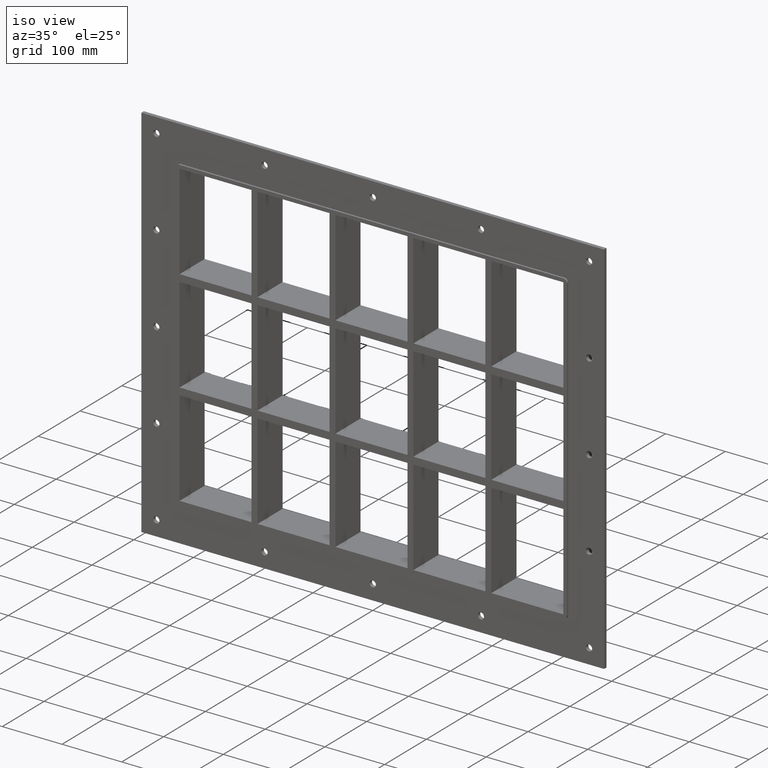
[diagram: clean part render]
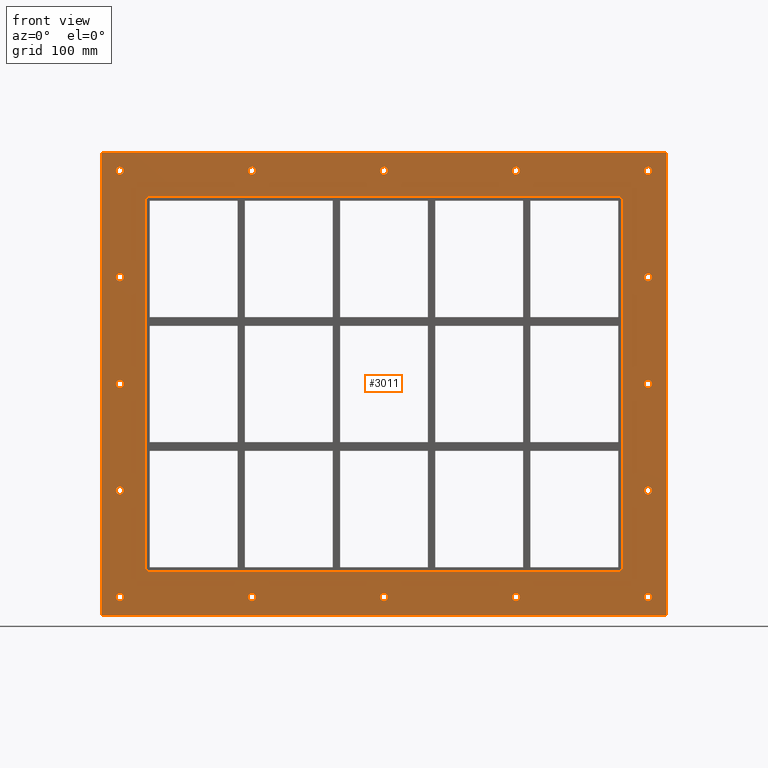
[diagram: tour spotlight — one face highlighted and labeled with its STEP entity id]
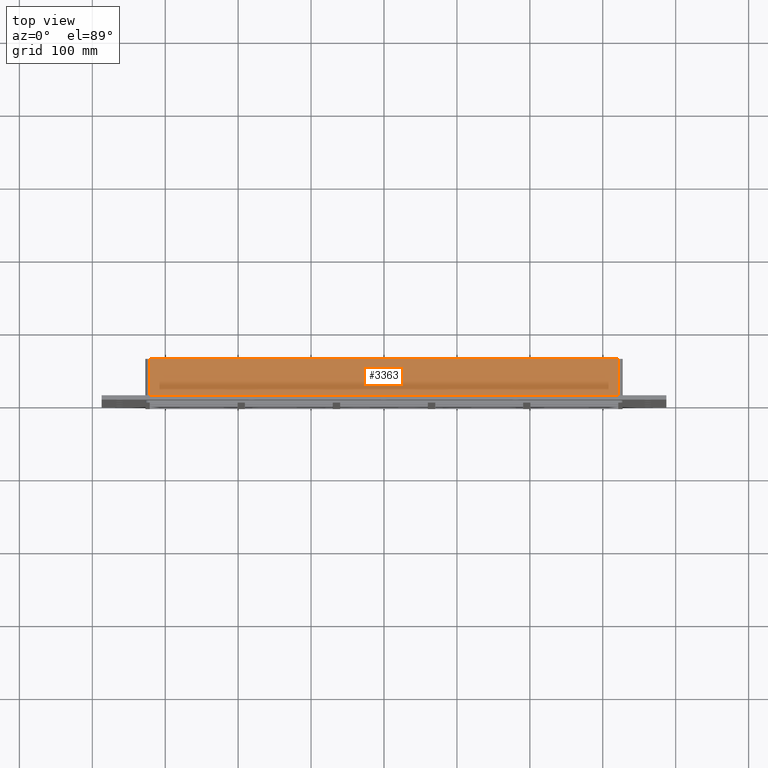
[diagram: tour spotlight — one face highlighted and labeled with its STEP entity id]
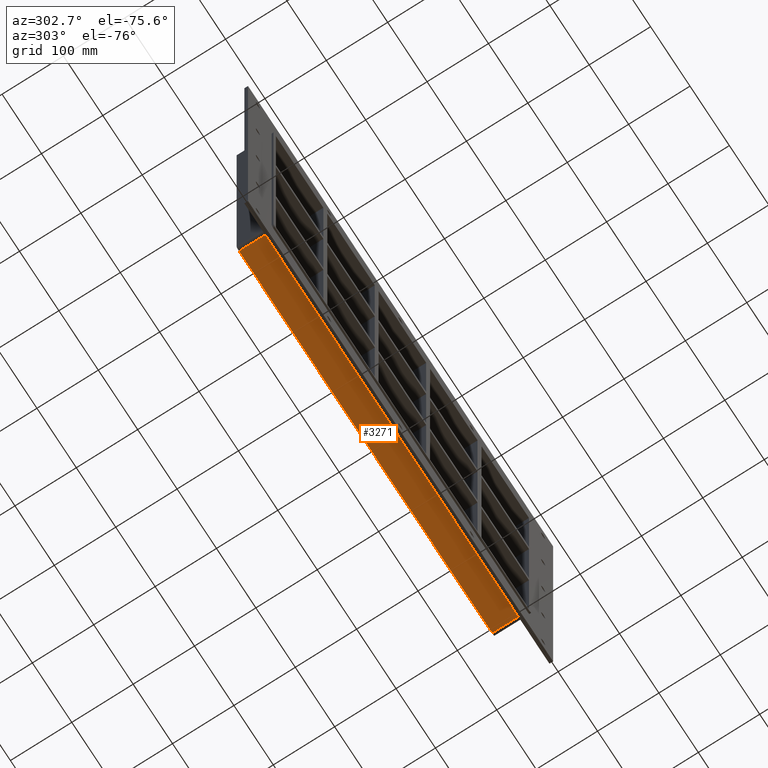
[diagram: tour spotlight — one face highlighted and labeled with its STEP entity id]
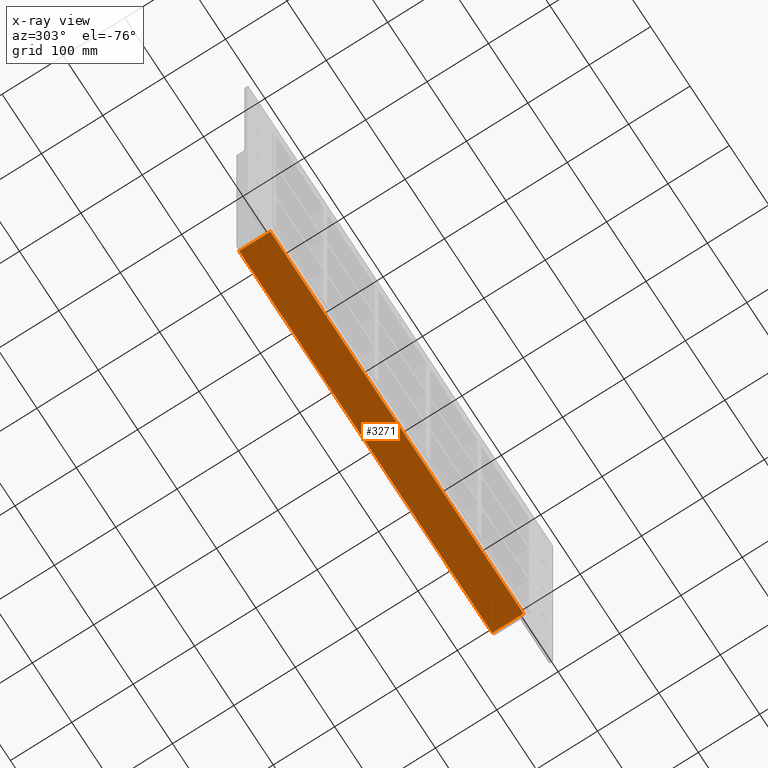
[diagram: x-ray of the same camera — body ghosted, this tour face saturated]
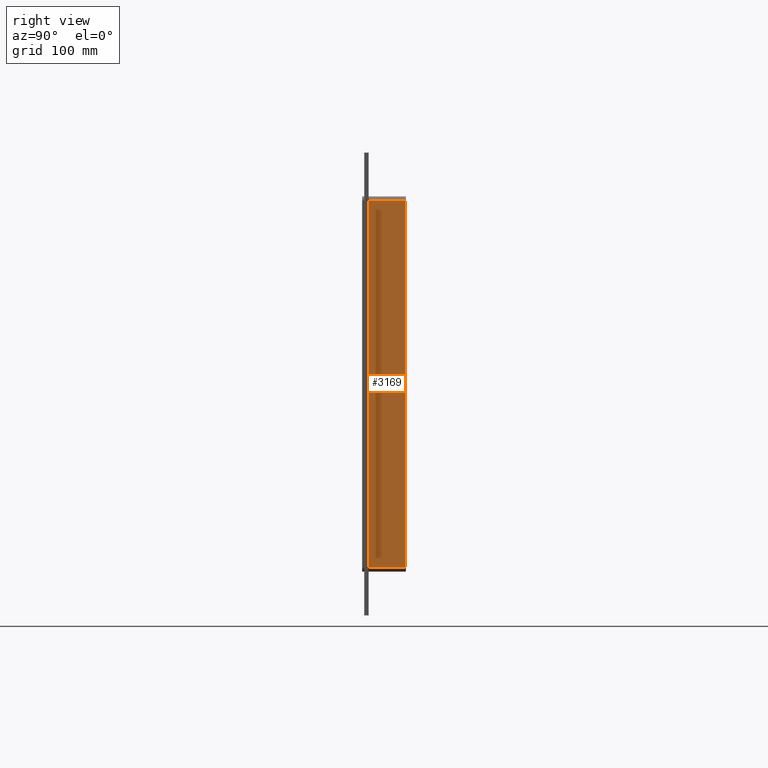
[diagram: tour spotlight — one face highlighted and labeled with its STEP entity id]
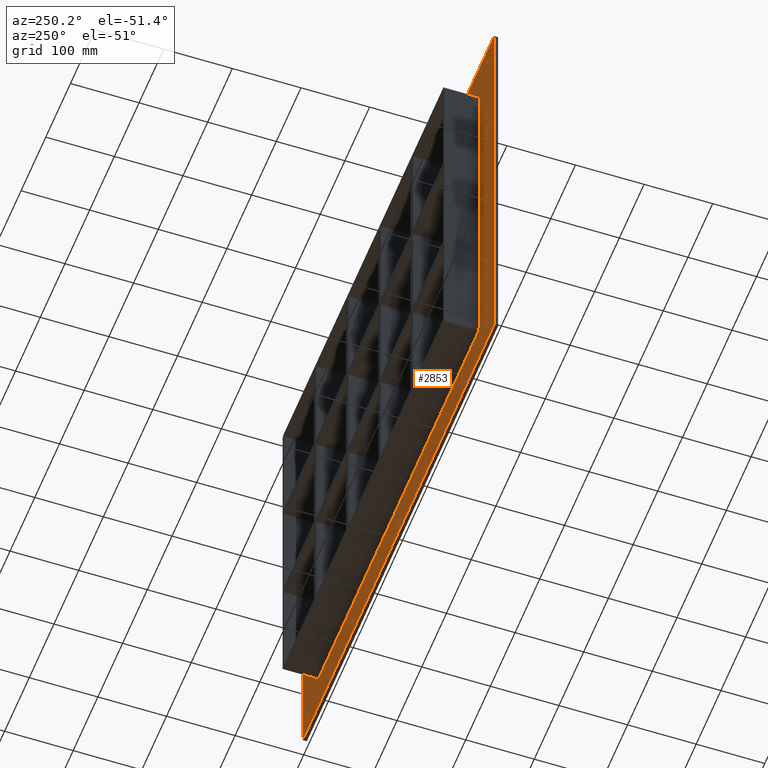
[diagram: tour spotlight — one face highlighted and labeled with its STEP entity id]
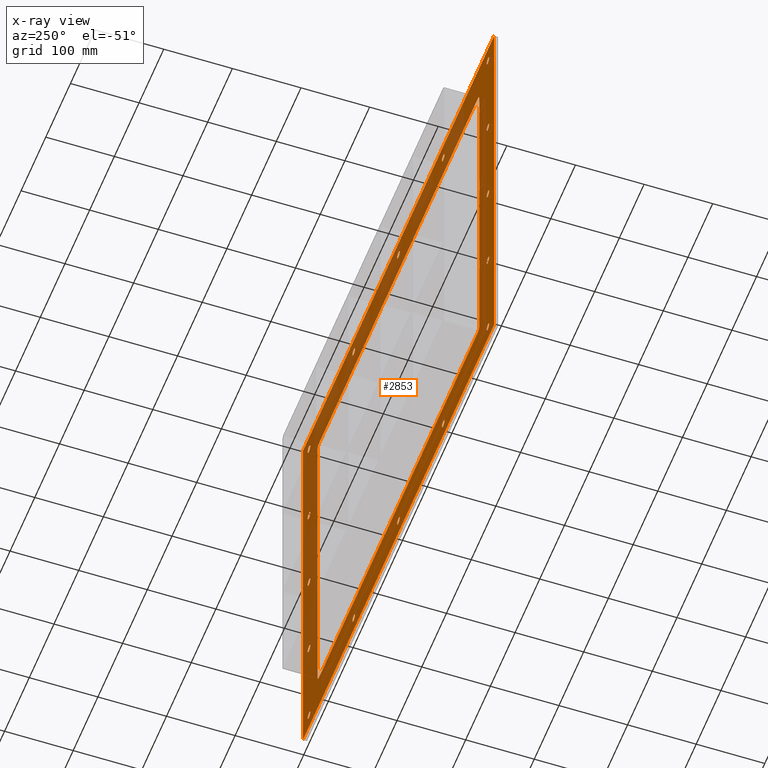
[diagram: x-ray of the same camera — body ghosted, this tour face saturated]
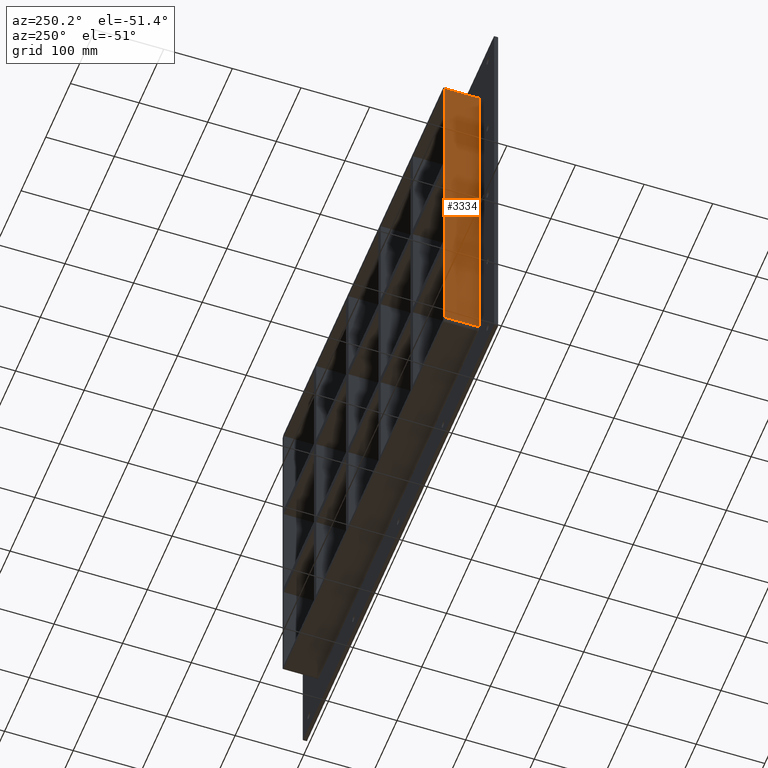
[diagram: tour spotlight — one face highlighted and labeled with its STEP entity id]
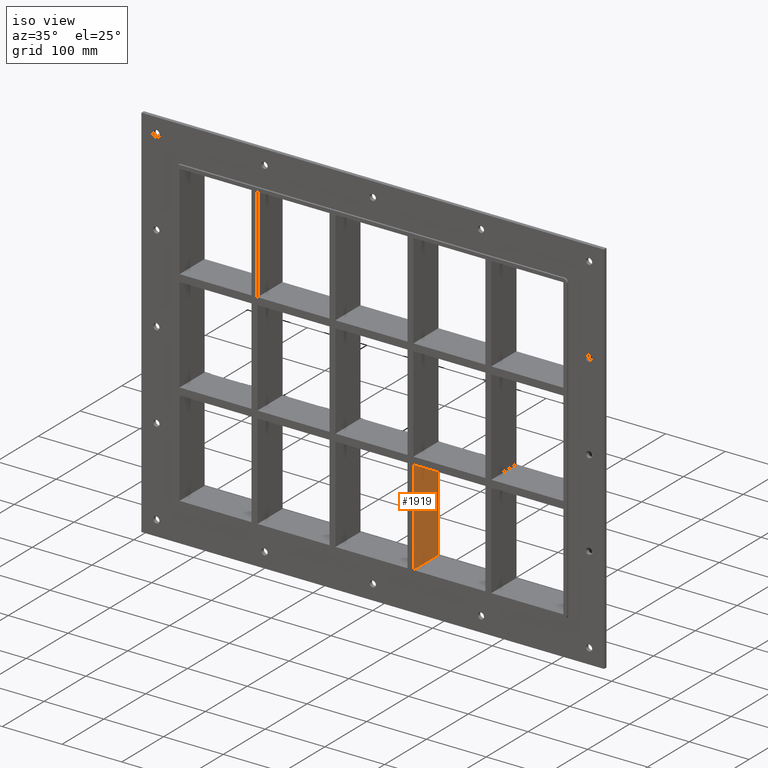
[diagram: tour spotlight — one face highlighted and labeled with its STEP entity id]
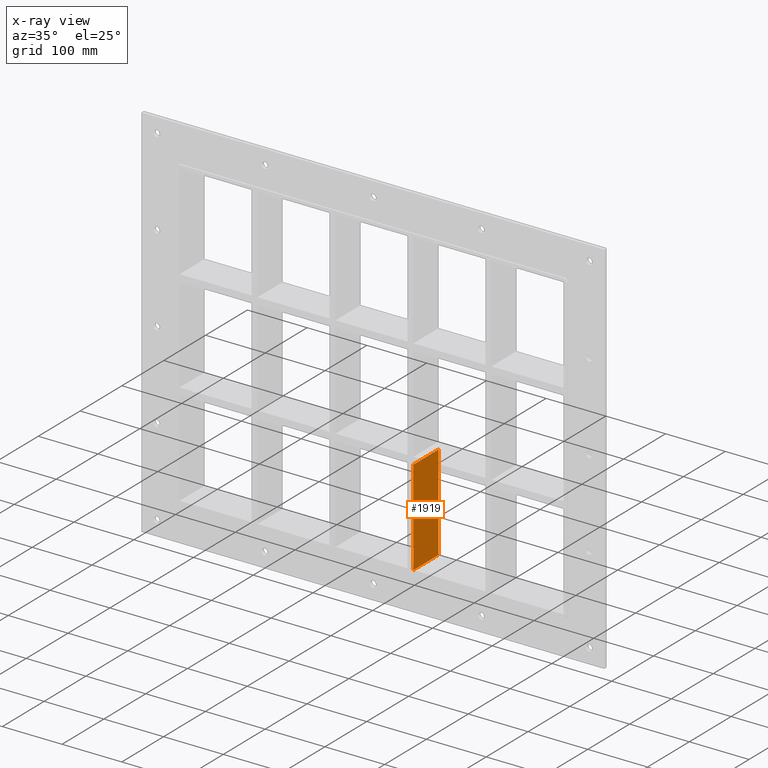
[diagram: x-ray of the same camera — body ghosted, this tour face saturated]
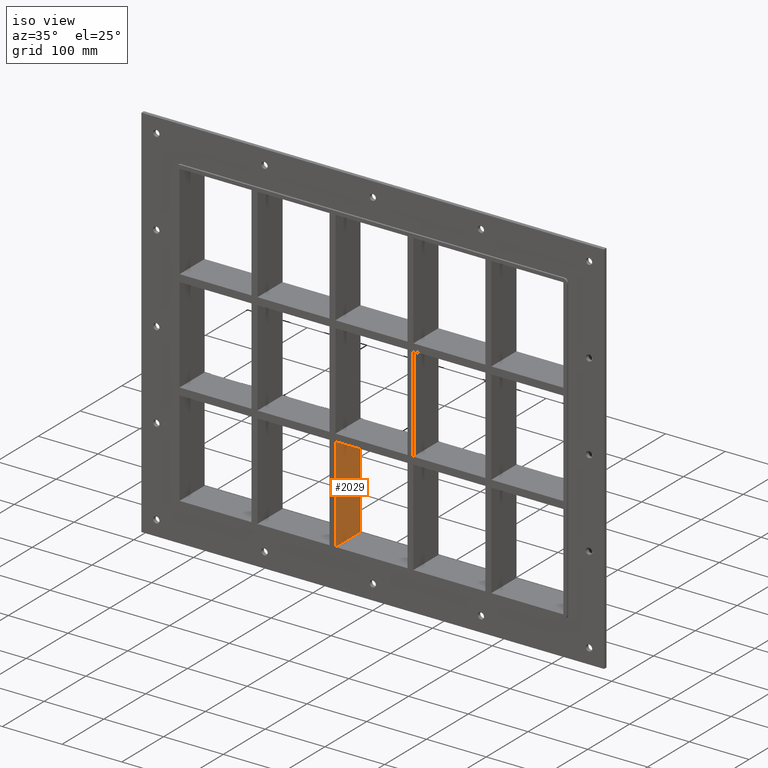
[diagram: tour spotlight — one face highlighted and labeled with its STEP entity id]
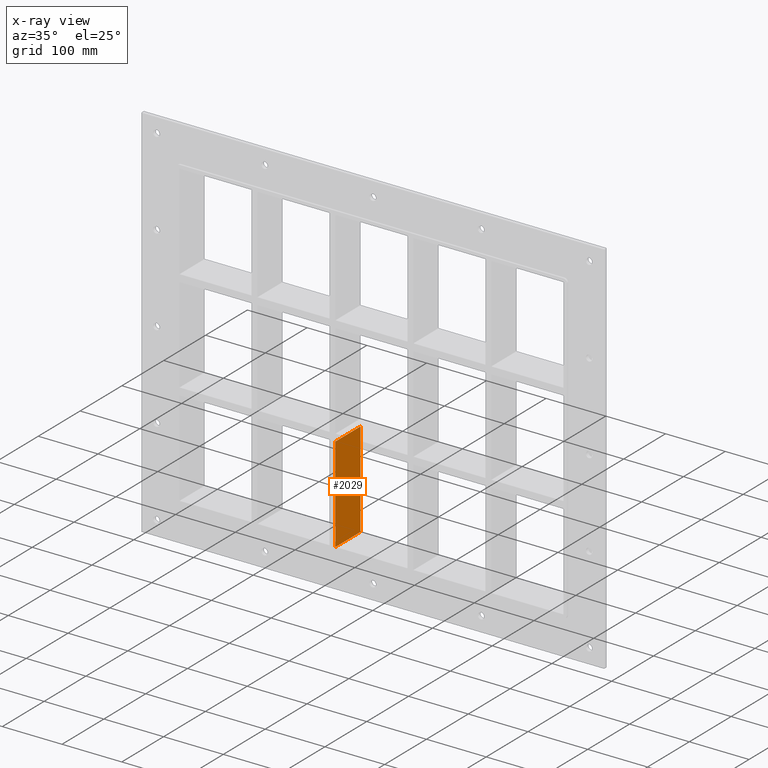
[diagram: x-ray of the same camera — body ghosted, this tour face saturated]
A machine part: a face-by-face anatomy tour. The part has 100 B-rep faces; the first image is the clean iso view, then the 8 largest visible faces are spotlighted one at a time (largest first), each with its STEP entity span.

Face 1 — front view, entity #3011. In plain terms, the highlighted planar face has unit normal (0, 1, 0).
Definition (entity closure, byte-faithful):
#84=CARTESIAN_POINT('',(-357.00000000000011,0.0,-292.24999999999989));
#85=VERTEX_POINT('',#84);
#86=CARTESIAN_POINT('',(-362.25000000000011,0.0,-292.24999999999989));
#87=DIRECTION('',(0.0,1.0,0.0));
#88=DIRECTION('',(1.0,0.0,0.0));
#89=AXIS2_PLACEMENT_3D('',#86,#87,#88);
#90=CIRCLE('',#89,5.25);
#91=EDGE_CURVE('',#85,#85,#90,.T.);
#112=CARTESIAN_POINT('',(367.39999999999986,0.0,-146.04999999999993));
#113=VERTEX_POINT('',#112);
#114=CARTESIAN_POINT('',(362.14999999999986,0.0,-146.04999999999993));
#115=DIRECTION('',(0.0,1.0,0.0));
#116=DIRECTION('',(1.0,0.0,0.0));
#117=AXIS2_PLACEMENT_3D('',#114,#115,#116);
#118=CIRCLE('',#117,5.25);
#119=EDGE_CURVE('',#113,#113,#118,.T.);
#140=CARTESIAN_POINT('',(-357.00000000000011,0.0,-146.04999999999993));
#141=VERTEX_POINT('',#140);
#142=CARTESIAN_POINT('',(-362.25000000000011,0.0,-146.04999999999993));
#143=DIRECTION('',(0.0,1.0,0.0));
#144=DIRECTION('',(1.0,0.0,0.0));
#145=AXIS2_PLACEMENT_3D('',#142,#143,#144);
#146=CIRCLE('',#145,5.25);
#147=EDGE_CURVE('',#141,#141,#146,.T.);
#168=CARTESIAN_POINT('',(367.39999999999986,0.0,0.150000000000041));
#169=VERTEX_POINT('',#168);
#170=CARTESIAN_POINT('',(362.14999999999986,0.0,0.150000000000041));
#171=DIRECTION('',(0.0,1.0,0.0));
#172=DIRECTION('',(1.0,0.0,0.0));
#173=AXIS2_PLACEMENT_3D('',#170,#171,#172);
#174=CIRCLE('',#173,5.25);
#175=EDGE_CURVE('',#169,#169,#174,.T.);
#196=CARTESIAN_POINT('',(-357.00000000000011,0.0,0.150000000000041));
#197=VERTEX_POINT('',#196);
#198=CARTESIAN_POINT('',(-362.25000000000011,0.0,0.150000000000041));
#199=DIRECTION('',(0.0,1.0,0.0));
#200=DIRECTION('',(1.0,0.0,0.0));
#201=AXIS2_PLACEMENT_3D('',#198,#199,#200);
#202=CIRCLE('',#201,5.25);
#203=EDGE_CURVE('',#197,#197,#202,.T.);
#224=CARTESIAN_POINT('',(367.39999999999986,0.0,146.35000000000002));
#225=VERTEX_POINT('',#224);
#226=CARTESIAN_POINT('',(362.14999999999986,0.0,146.35000000000002));
#227=DIRECTION('',(0.0,1.0,0.0));
#228=DIRECTION('',(1.0,0.0,0.0));
#229=AXIS2_PLACEMENT_3D('',#226,#227,#228);
#230=CIRCLE('',#229,5.25);
#231=EDGE_CURVE('',#225,#225,#230,.T.);
#252=CARTESIAN_POINT('',(-357.00000000000011,0.0,146.35000000000002));
#253=VERTEX_POINT('',#252);
#254=CARTESIAN_POINT('',(-362.25000000000011,0.0,146.35000000000002));
#255=DIRECTION('',(0.0,1.0,0.0));
#256=DIRECTION('',(1.0,0.0,0.0));
#257=AXIS2_PLACEMENT_3D('',#254,#255,#256);
#258=CIRCLE('',#257,5.25);
#259=EDGE_CURVE('',#253,#253,#258,.T.);
#280=CARTESIAN_POINT('',(-175.90000000000009,0.0,292.55000000000001));
#281=VERTEX_POINT('',#280);
#282=CARTESIAN_POINT('',(-181.15000000000009,0.0,292.55000000000001));
#283=DIRECTION('',(0.0,1.0,0.0));
#284=DIRECTION('',(1.0,0.0,0.0));
#285=AXIS2_PLACEMENT_3D('',#282,#283,#284);
#286=CIRCLE('',#285,5.25);
#287=EDGE_CURVE('',#281,#281,#286,.T.);
#308=CARTESIAN_POINT('',(-175.90000000000009,0.0,-292.25));
#309=VERTEX_POINT('',#308);
#310=CARTESIAN_POINT('',(-181.15000000000009,0.0,-292.25));
#311=DIRECTION('',(0.0,1.0,0.0));
#312=DIRECTION('',(1.0,0.0,0.0));
#313=AXIS2_PLACEMENT_3D('',#310,#311,#312);
#314=CIRCLE('',#313,5.25);
#315=EDGE_CURVE('',#309,#309,#314,.T.);
#336=CARTESIAN_POINT('',(5.199999999999889,0.0,292.55000000000001));
#337=VERTEX_POINT('',#336);
#338=CARTESIAN_POINT('',(-0.050000000000097,0.0,292.55000000000001));
#339=DIRECTION('',(0.0,1.0,0.0));
#340=DIRECTION('',(1.0,0.0,0.0));
#341=AXIS2_PLACEMENT_3D('',#338,#339,#340);
#342=CIRCLE('',#341,5.25);
#343=EDGE_CURVE('',#337,#337,#342,.T.);
#364=CARTESIAN_POINT('',(5.199999999999889,0.0,-292.25));
#365=VERTEX_POINT('',#364);
#366=CARTESIAN_POINT('',(-0.050000000000097,0.0,-292.25));
#367=DIRECTION('',(0.0,1.0,0.0));
#368=DIRECTION('',(1.0,0.0,0.0));
#369=AXIS2_PLACEMENT_3D('',#366,#367,#368);
#370=CIRCLE('',#369,5.25);
#371=EDGE_CURVE('',#365,#365,#370,.T.);
#392=CARTESIAN_POINT('',(186.2999999999999,0.0,292.55000000000001));
#393=VERTEX_POINT('',#392);
#394=CARTESIAN_POINT('',(181.0499999999999,0.0,292.55000000000001));
#395=DIRECTION('',(0.0,1.0,0.0));
#396=DIRECTION('',(1.0,0.0,0.0));
#397=AXIS2_PLACEMENT_3D('',#394,#395,#396);
#398=CIRCLE('',#397,5.25);
#399=EDGE_CURVE('',#393,#393,#398,.T.);
#420=CARTESIAN_POINT('',(186.2999999999999,0.0,-292.25));
#421=VERTEX_POINT('',#420);
#422=CARTESIAN_POINT('',(181.0499999999999,0.0,-292.25));
#423=DIRECTION('',(0.0,1.0,0.0));
#424=DIRECTION('',(1.0,0.0,0.0));
#425=AXIS2_PLACEMENT_3D('',#422,#423,#424);
#426=CIRCLE('',#425,5.25);
#427=EDGE_CURVE('',#421,#421,#426,.T.);
#448=CARTESIAN_POINT('',(367.39999999999986,0.0,-292.25));
#449=VERTEX_POINT('',#448);
#450=CARTESIAN_POINT('',(362.14999999999986,0.0,-292.25));
#451=DIRECTION('',(0.0,1.0,0.0));
#452=DIRECTION('',(1.0,0.0,0.0));
#453=AXIS2_PLACEMENT_3D('',#450,#451,#452);
#454=CIRCLE('',#453,5.25);
#455=EDGE_CURVE('',#449,#449,#454,.T.);
#476=CARTESIAN_POINT('',(-357.00000000000011,0.0,292.55000000000001));
#477=VERTEX_POINT('',#476);
#478=CARTESIAN_POINT('',(-362.25000000000011,0.0,292.55000000000001));
#479=DIRECTION('',(0.0,1.0,0.0));
#480=DIRECTION('',(1.0,0.0,0.0));
#481=AXIS2_PLACEMENT_3D('',#478,#479,#480);
#482=CIRCLE('',#481,5.25);
#483=EDGE_CURVE('',#477,#477,#482,.T.);
#504=CARTESIAN_POINT('',(367.39999999999986,0.0,292.55000000000001));
#505=VERTEX_POINT('',#504);
#506=CARTESIAN_POINT('',(362.14999999999986,0.0,292.55000000000001));
#507=DIRECTION('',(0.0,1.0,0.0));
#508=DIRECTION('',(1.0,0.0,0.0));
#509=AXIS2_PLACEMENT_3D('',#506,#507,#508);
#510=CIRCLE('',#509,5.25);
#511=EDGE_CURVE('',#505,#505,#510,.T.);
#2854=CARTESIAN_POINT('',(-8.472050E-014,0.0,-7.999279E-015));
#2855=DIRECTION('',(0.0,1.0,0.0));
#2856=DIRECTION('',(0.0,0.0,1.0));
#2857=AXIS2_PLACEMENT_3D('',#2854,#2855,#2856);
#2858=PLANE('',#2857);
#2859=CARTESIAN_POINT('',(-387.25,0.0,317.24999999999994));
#2860=VERTEX_POINT('',#2859);
#2861=CARTESIAN_POINT('',(387.24999999999989,0.0,317.24999999999994));
#2862=VERTEX_POINT('',#2861);
#2863=CARTESIAN_POINT('',(-387.25,0.0,317.24999999999994));
#2864=DIRECTION('',(1.0,0.0,0.0));
#2865=VECTOR('',#2864,774.49999999999989);
#2866=LINE('',#2863,#2865);
#2867=EDGE_CURVE('',#2860,#2862,#2866,.T.);
#2868=ORIENTED_EDGE('',*,*,#2867,.F.);
#2869=CARTESIAN_POINT('',(-387.25,0.0,-317.25));
#2870=VERTEX_POINT('',#2869);
#2871=CARTESIAN_POINT('',(-387.25,0.0,-317.25));
#2872=DIRECTION('',(0.0,0.0,1.0));
#2873=VECTOR('',#2872,634.49999999999989);
#2874=LINE('',#2871,#2873);
#2875=EDGE_CURVE('',#2870,#2860,#2874,.T.);
#2876=ORIENTED_EDGE('',*,*,#2875,.F.);
#2877=CARTESIAN_POINT('',(387.24999999999989,0.0,-317.25));
#2878=VERTEX_POINT('',#2877);
#2879=CARTESIAN_POINT('',(387.24999999999989,0.0,-317.25));
#2880=DIRECTION('',(-1.0,0.0,0.0));
#2881=VECTOR('',#2880,774.49999999999989);
#2882=LINE('',#2879,#2881);
#2883=EDGE_CURVE('',#2878,#2870,#2882,.T.);
#2884=ORIENTED_EDGE('',*,*,#2883,.F.);
#2885=CARTESIAN_POINT('',(387.24999999999989,0.0,317.24999999999994));
#2886=DIRECTION('',(0.0,0.0,-1.0));
#2887=VECTOR('',#2886,634.49999999999989);
#2888=LINE('',#2885,#2887);
#2889=EDGE_CURVE('',#2862,#2878,#2888,.T.);
#2890=ORIENTED_EDGE('',*,*,#2889,.F.);
#2891=EDGE_LOOP('',(#2868,#2876,#2884,#2890));
#2892=FACE_OUTER_BOUND('',#2891,.T.);
#2893=ORIENTED_EDGE('',*,*,#91,.T.);
#2894=EDGE_LOOP('',(#2893));
#2895=FACE_BOUND('',#2894,.T.);
#2896=ORIENTED_EDGE('',*,*,#119,.T.);
#2897=EDGE_LOOP('',(#2896));
#2898=FACE_BOUND('',#2897,.T.);
#2899=ORIENTED_EDGE('',*,*,#147,.T.);
#2900=EDGE_LOOP('',(#2899));
#2901=FACE_BOUND('',#2900,.T.);
#2902=ORIENTED_EDGE('',*,*,#175,.T.);
#2903=EDGE_LOOP('',(#2902));
#2904=FACE_BOUND('',#2903,.T.);
#2905=ORIENTED_EDGE('',*,*,#203,.T.);
#2906=EDGE_LOOP('',(#2905));
#2907=FACE_BOUND('',#2906,.T.);
#2908=ORIENTED_EDGE('',*,*,#231,.T.);
#2909=EDGE_LOOP('',(#2908));
#2910=FACE_BOUND('',#2909,.T.);
#2911=ORIENTED_EDGE('',*,*,#259,.T.);
#2912=EDGE_LOOP('',(#2911));
#2913=FACE_BOUND('',#2912,.T.);
#2914=ORIENTED_EDGE('',*,*,#287,.T.);
#2915=EDGE_LOOP('',(#2914));
#2916=FACE_BOUND('',#2915,.T.);
#2917=ORIENTED_EDGE('',*,*,#315,.T.);
#2918=EDGE_LOOP('',(#2917));
#2919=FACE_BOUND('',#2918,.T.);
#2920=ORIENTED_EDGE('',*,*,#343,.T.);
#2921=EDGE_LOOP('',(#2920));
#2922=FACE_BOUND('',#2921,.T.);
#2923=ORIENTED_EDGE('',*,*,#371,.T.);
#2924=EDGE_LOOP('',(#2923));
#2925=FACE_BOUND('',#2924,.T.);
#2926=ORIENTED_EDGE('',*,*,#399,.T.);
#2927=EDGE_LOOP('',(#2926));
#2928=FACE_BOUND('',#2927,.T.);
#2929=ORIENTED_EDGE('',*,*,#427,.T.);
#2930=EDGE_LOOP('',(#2929));
#2931=FACE_BOUND('',#2930,.T.);
#2932=ORIENTED_EDGE('',*,*,#455,.T.);
#2933=EDGE_LOOP('',(#2932));
#2934=FACE_BOUND('',#2933,.T.);
#2935=ORIENTED_EDGE('',*,*,#483,.T.);
#2936=EDGE_LOOP('',(#2935));
#2937=FACE_BOUND('',#2936,.T.);
#2938=ORIENTED_EDGE('',*,*,#511,.T.);
#2939=EDGE_LOOP('',(#2938));
#2940=FACE_BOUND('',#2939,.T.);
#2941=CARTESIAN_POINT('',(-327.25,0.0,-251.25));
#2942=VERTEX_POINT('',#2941);
#2943=CARTESIAN_POINT('',(-321.25,0.0,-257.25));
#2944=VERTEX_POINT('',#2943);
#2945=CARTESIAN_POINT('',(-321.25,0.0,-251.25));
#2946=DIRECTION('',(0.0,-1.0,0.0));
#2947=DIRECTION('',(-0.707106781186543,0.0,-0.707106781186552));
#2948=AXIS2_PLACEMENT_3D('',#2945,#2946,#2947);
#2949=CIRCLE('',#2948,6.000000000000001);
#2950=EDGE_CURVE('',#2942,#2944,#2949,.T.);
#2951=ORIENTED_EDGE('',*,*,#2950,.F.);
#2952=CARTESIAN_POINT('',(-327.25,0.0,251.25));
#2953=VERTEX_POINT('',#2952);
#2954=CARTESIAN_POINT('',(-327.25,0.0,251.25));
#2955=DIRECTION('',(0.0,0.0,-1.0));
#2956=VECTOR('',#2955,502.5);
#2957=LINE('',#2954,#2956);
#2958=EDGE_CURVE('',#2953,#2942,#2957,.T.);
#2959=ORIENTED_EDGE('',*,*,#2958,.F.);
#2960=CARTESIAN_POINT('',(-321.25,0.0,257.25));
#2961=VERTEX_POINT('',#2960);
#2962=CARTESIAN_POINT('',(-321.25,0.0,251.25));
#2963=DIRECTION('',(0.0,-1.0,0.0));
#2964=DIRECTION('',(-0.707106781186543,0.0,0.707106781186552));
#2965=AXIS2_PLACEMENT_3D('',#2962,#2963,#2964);
#2966=CIRCLE('',#2965,6.000000000000001);
#2967=EDGE_CURVE('',#2961,#2953,#2966,.T.);
#2968=ORIENTED_EDGE('',*,*,#2967,.F.);
#2969=CARTESIAN_POINT('',(321.25,0.0,257.25));
#2970=VERTEX_POINT('',#2969);
#2971=CARTESIAN_POINT('',(321.25,0.0,257.25));
#2972=DIRECTION('',(-1.0,0.0,0.0));
#2973=VECTOR('',#2972,642.5);
#2974=LINE('',#2971,#2973);
#2975=EDGE_CURVE('',#2970,#2961,#2974,.T.);
#2976=ORIENTED_EDGE('',*,*,#2975,.F.);
#2977=CARTESIAN_POINT('',(327.25,0.0,251.25));
#2978=VERTEX_POINT('',#2977);
#2979=CARTESIAN_POINT('',(321.25,0.0,251.25));
#2980=DIRECTION('',(0.0,-1.0,0.0));
#2981=DIRECTION('',(0.707106781186543,0.0,0.707106781186552));
#2982=AXIS2_PLACEMENT_3D('',#2979,#2980,#2981);
#2983=CIRCLE('',#2982,6.000000000000001);
#2984=EDGE_CURVE('',#2978,#2970,#2983,.T.);
#2985=ORIENTED_EDGE('',*,*,#2984,.F.);
#2986=CARTESIAN_POINT('',(327.25,0.0,-251.25));
#2987=VERTEX_POINT('',#2986);
#2988=CARTESIAN_POINT('',(327.25,0.0,-251.25));
#2989=DIRECTION('',(0.0,0.0,1.0));
#2990=VECTOR('',#2989,502.5);
#2991=LINE('',#2988,#2990);
#2992=EDGE_CURVE('',#2987,#2978,#2991,.T.);
#2993=ORIENTED_EDGE('',*,*,#2992,.F.);
#2994=CARTESIAN_POINT('',(321.25,0.0,-257.25));
#2995=VERTEX_POINT('',#2994);
#2996=CARTESIAN_POINT('',(321.25,0.0,-251.25));
#2997=DIRECTION('',(0.0,-1.0,0.0));
#2998=DIRECTION('',(0.707106781186543,0.0,-0.707106781186552));
#2999=AXIS2_PLACEMENT_3D('',#2996,#2997,#2998);
#3000=CIRCLE('',#2999,6.000000000000001);
#3001=EDGE_CURVE('',#2995,#2987,#3000,.T.);
#3002=ORIENTED_EDGE('',*,*,#3001,.F.);
#3003=CARTESIAN_POINT('',(-321.25,0.0,-257.25));
#3004=DIRECTION('',(1.0,0.0,0.0));
#3005=VECTOR('',#3004,642.5);
#3006=LINE('',#3003,#3005);
#3007=EDGE_CURVE('',#2944,#2995,#3006,.T.);
#3008=ORIENTED_EDGE('',*,*,#3007,.F.);
#3009=EDGE_LOOP('',(#2951,#2959,#2968,#2976,#2985,#2993,#3002,#3008));
#3010=FACE_BOUND('',#3009,.T.);
#3011=ADVANCED_FACE('',(#2892,#2895,#2898,#2901,#2904,#2907,#2910,#2913,#2916,#2919,#2922,#2925,#2928,#2931,#2934,#2937,#2940,#3010),#2858,.F.);

Face 2 — top view, entity #3363. In plain terms, the highlighted planar face has unit normal (0, 0, 1).
Definition (entity closure, byte-faithful):
#1329=CARTESIAN_POINT('',(-321.25,57.0,257.25));
#1330=VERTEX_POINT('',#1329);
#1338=CARTESIAN_POINT('',(321.24999999999994,57.0,257.25));
#1339=VERTEX_POINT('',#1338);
#1340=CARTESIAN_POINT('',(-321.25,57.0,257.25));
#1341=DIRECTION('',(1.0,0.0,0.0));
#1342=VECTOR('',#1341,642.5);
#1343=LINE('',#1340,#1342);
#1344=EDGE_CURVE('',#1330,#1339,#1343,.T.);
#2819=CARTESIAN_POINT('',(321.25,6.000000000000001,257.25));
#2820=VERTEX_POINT('',#2819);
#2828=CARTESIAN_POINT('',(-321.25,6.000000000000001,257.25));
#2829=VERTEX_POINT('',#2828);
#2830=CARTESIAN_POINT('',(-321.25,6.000000000000001,257.25));
#2831=DIRECTION('',(1.0,0.0,0.0));
#2832=VECTOR('',#2831,642.5);
#2833=LINE('',#2830,#2832);
#2834=EDGE_CURVE('',#2829,#2820,#2833,.T.);
#3127=CARTESIAN_POINT('',(321.25,57.0,257.25));
#3128=DIRECTION('',(0.0,-1.0,0.0));
#3129=VECTOR('',#3128,51.0);
#3130=LINE('',#3127,#3129);
#3131=EDGE_CURVE('',#1339,#2820,#3130,.T.);
#3341=CARTESIAN_POINT('',(-321.25,6.000000000000001,257.25));
#3342=DIRECTION('',(0.0,1.0,0.0));
#3343=VECTOR('',#3342,51.0);
#3344=LINE('',#3341,#3343);
#3345=EDGE_CURVE('',#2829,#1330,#3344,.T.);
#3352=CARTESIAN_POINT('',(-327.25,0.0,257.25));
#3353=DIRECTION('',(0.0,0.0,1.0));
#3354=DIRECTION('',(1.0,0.0,0.0));
#3355=AXIS2_PLACEMENT_3D('',#3352,#3353,#3354);
#3356=PLANE('',#3355);
#3357=ORIENTED_EDGE('',*,*,#2834,.T.);
#3358=ORIENTED_EDGE('',*,*,#3131,.F.);
#3359=ORIENTED_EDGE('',*,*,#1344,.F.);
#3360=ORIENTED_EDGE('',*,*,#3345,.F.);
#3361=EDGE_LOOP('',(#3357,#3358,#3359,#3360));
#3362=FACE_OUTER_BOUND('',#3361,.T.);
#3363=ADVANCED_FACE('',(#3362),#3356,.T.);

Face 3 — auxiliary view, entity #3271. An x-ray twin of the same camera follows (body ghosted, this face saturated) — the face is partly hidden behind the body. In plain terms, the highlighted planar face has unit normal (0, 0, -1).
Definition (entity closure, byte-faithful):
#1293=CARTESIAN_POINT('',(321.25,57.0,-257.25));
#1294=VERTEX_POINT('',#1293);
#1304=CARTESIAN_POINT('',(-321.24999999999994,57.0,-257.25));
#1305=VERTEX_POINT('',#1304);
#1306=CARTESIAN_POINT('',(321.25,57.0,-257.25));
#1307=DIRECTION('',(-1.0,0.0,0.0));
#1308=VECTOR('',#1307,642.5);
#1309=LINE('',#1306,#1308);
#1310=EDGE_CURVE('',#1294,#1305,#1309,.T.);
#2783=CARTESIAN_POINT('',(-321.25,6.000000000000001,-257.25));
#2784=VERTEX_POINT('',#2783);
#2794=CARTESIAN_POINT('',(321.25,6.000000000000001,-257.25));
#2795=VERTEX_POINT('',#2794);
#2796=CARTESIAN_POINT('',(321.25,6.000000000000001,-257.25));
#2797=DIRECTION('',(-1.0,0.0,0.0));
#2798=VECTOR('',#2797,642.5);
#2799=LINE('',#2796,#2798);
#2800=EDGE_CURVE('',#2795,#2784,#2799,.T.);
#3210=CARTESIAN_POINT('',(321.25,6.000000000000001,-257.25));
#3211=DIRECTION('',(0.0,1.0,0.0));
#3212=VECTOR('',#3211,51.0);
#3213=LINE('',#3210,#3212);
#3214=EDGE_CURVE('',#2795,#1294,#3213,.T.);
#3255=CARTESIAN_POINT('',(327.25,0.0,-257.25));
#3256=DIRECTION('',(0.0,0.0,-1.0));
#3257=DIRECTION('',(-1.0,0.0,0.0));
#3258=AXIS2_PLACEMENT_3D('',#3255,#3256,#3257);
#3259=PLANE('',#3258);
#3260=ORIENTED_EDGE('',*,*,#2800,.T.);
#3261=CARTESIAN_POINT('',(-321.25,57.0,-257.25));
#3262=DIRECTION('',(0.0,-1.0,0.0));
#3263=VECTOR('',#3262,51.0);
#3264=LINE('',#3261,#3263);
#3265=EDGE_CURVE('',#1305,#2784,#3264,.T.);
#3266=ORIENTED_EDGE('',*,*,#3265,.F.);
#3267=ORIENTED_EDGE('',*,*,#1310,.F.);
#3268=ORIENTED_EDGE('',*,*,#3214,.F.);
#3269=EDGE_LOOP('',(#3260,#3266,#3267,#3268));
#3270=FACE_OUTER_BOUND('',#3269,.T.);
#3271=ADVANCED_FACE('',(#3270),#3259,.T.);

Face 4 — right view, entity #3169. In plain terms, the highlighted planar face has unit normal (1, 0, 0).
Definition (entity closure, byte-faithful):
#1295=CARTESIAN_POINT('',(327.25,57.0,-251.25));
#1296=VERTEX_POINT('',#1295);
#1346=CARTESIAN_POINT('',(327.25,57.0,251.25));
#1347=VERTEX_POINT('',#1346);
#1355=CARTESIAN_POINT('',(327.25,57.0,251.25));
#1356=DIRECTION('',(0.0,0.0,-1.0));
#1357=VECTOR('',#1356,502.5);
#1358=LINE('',#1355,#1357);
#1359=EDGE_CURVE('',#1347,#1296,#1358,.T.);
#2802=CARTESIAN_POINT('',(327.25,6.000000000000001,-251.25));
#2803=VERTEX_POINT('',#2802);
#2811=CARTESIAN_POINT('',(327.25,6.000000000000001,251.25));
#2812=VERTEX_POINT('',#2811);
#2813=CARTESIAN_POINT('',(327.25,6.000000000000001,251.25));
#2814=DIRECTION('',(0.0,0.0,-1.0));
#2815=VECTOR('',#2814,502.5);
#2816=LINE('',#2813,#2815);
#2817=EDGE_CURVE('',#2812,#2803,#2816,.T.);
#3120=CARTESIAN_POINT('',(327.25,6.000000000000001,251.25));
#3121=DIRECTION('',(0.0,1.0,0.0));
#3122=VECTOR('',#3121,51.0);
#3123=LINE('',#3120,#3122);
#3124=EDGE_CURVE('',#2812,#1347,#3123,.T.);
#3153=CARTESIAN_POINT('',(327.25,0.0,257.25));
#3154=DIRECTION('',(1.0,0.0,0.0));
#3155=DIRECTION('',(0.0,0.0,-1.0));
#3156=AXIS2_PLACEMENT_3D('',#3153,#3154,#3155);
#3157=PLANE('',#3156);
#3158=ORIENTED_EDGE('',*,*,#2817,.T.);
#3159=CARTESIAN_POINT('',(327.25,57.0,-251.25));
#3160=DIRECTION('',(0.0,-1.0,0.0));
#3161=VECTOR('',#3160,51.0);
#3162=LINE('',#3159,#3161);
#3163=EDGE_CURVE('',#1296,#2803,#3162,.T.);
#3164=ORIENTED_EDGE('',*,*,#3163,.F.);
#3165=ORIENTED_EDGE('',*,*,#1359,.F.);
#3166=ORIENTED_EDGE('',*,*,#3124,.F.);
#3167=EDGE_LOOP('',(#3158,#3164,#3165,#3166));
#3168=FACE_OUTER_BOUND('',#3167,.T.);
#3169=ADVANCED_FACE('',(#3168),#3157,.T.);

Face 5 — auxiliary view, entity #2853. An x-ray twin of the same camera follows (body ghosted, this face saturated) — the face is partly hidden behind the body. In plain terms, the highlighted planar face has unit normal (0, 1, 0).
Definition (entity closure, byte-faithful):
#73=CARTESIAN_POINT('',(-367.50000000000006,5.999999999999943,-292.24999999999989));
#74=VERTEX_POINT('',#73);
#75=CARTESIAN_POINT('',(-362.25000000000011,5.999999999999943,-292.24999999999989));
#76=DIRECTION('',(0.0,-1.0,0.0));
#77=DIRECTION('',(1.0,0.0,0.0));
#78=AXIS2_PLACEMENT_3D('',#75,#76,#77);
#79=CIRCLE('',#78,5.25);
#80=EDGE_CURVE('',#74,#74,#79,.T.);
#101=CARTESIAN_POINT('',(356.89999999999992,5.999999999999943,-146.04999999999993));
#102=VERTEX_POINT('',#101);
#103=CARTESIAN_POINT('',(362.14999999999986,5.999999999999943,-146.04999999999993));
#104=DIRECTION('',(0.0,-1.0,0.0));
#105=DIRECTION('',(1.0,0.0,0.0));
#106=AXIS2_PLACEMENT_3D('',#103,#104,#105);
#107=CIRCLE('',#106,5.25);
#108=EDGE_CURVE('',#102,#102,#107,.T.);
#129=CARTESIAN_POINT('',(-367.50000000000006,5.999999999999943,-146.04999999999993));
#130=VERTEX_POINT('',#129);
#131=CARTESIAN_POINT('',(-362.25000000000011,5.999999999999943,-146.04999999999993));
#132=DIRECTION('',(0.0,-1.0,0.0));
#133=DIRECTION('',(1.0,0.0,0.0));
#134=AXIS2_PLACEMENT_3D('',#131,#132,#133);
#135=CIRCLE('',#134,5.25);
#136=EDGE_CURVE('',#130,#130,#135,.T.);
#157=CARTESIAN_POINT('',(356.89999999999992,5.999999999999943,0.150000000000041));
#158=VERTEX_POINT('',#157);
#159=CARTESIAN_POINT('',(362.14999999999986,5.999999999999943,0.150000000000041));
#160=DIRECTION('',(0.0,-1.0,0.0));
#161=DIRECTION('',(1.0,0.0,0.0));
#162=AXIS2_PLACEMENT_3D('',#159,#160,#161);
#163=CIRCLE('',#162,5.25);
#164=EDGE_CURVE('',#158,#158,#163,.T.);
#185=CARTESIAN_POINT('',(-367.50000000000006,5.999999999999943,0.150000000000041));
#186=VERTEX_POINT('',#185);
#187=CARTESIAN_POINT('',(-362.25000000000011,5.999999999999943,0.150000000000041));
#188=DIRECTION('',(0.0,-1.0,0.0));
#189=DIRECTION('',(1.0,0.0,0.0));
#190=AXIS2_PLACEMENT_3D('',#187,#188,#189);
#191=CIRCLE('',#190,5.25);
#192=EDGE_CURVE('',#186,#186,#191,.T.);
#213=CARTESIAN_POINT('',(356.89999999999992,5.999999999999943,146.35000000000002));
#214=VERTEX_POINT('',#213);
#215=CARTESIAN_POINT('',(362.14999999999986,5.999999999999943,146.35000000000002));
#216=DIRECTION('',(0.0,-1.0,0.0));
#217=DIRECTION('',(1.0,0.0,0.0));
#218=AXIS2_PLACEMENT_3D('',#215,#216,#217);
#219=CIRCLE('',#218,5.25);
#220=EDGE_CURVE('',#214,#214,#219,.T.);
#241=CARTESIAN_POINT('',(-367.50000000000006,5.999999999999943,146.35000000000002));
#242=VERTEX_POINT('',#241);
#243=CARTESIAN_POINT('',(-362.25000000000011,5.999999999999943,146.35000000000002));
#244=DIRECTION('',(0.0,-1.0,0.0));
#245=DIRECTION('',(1.0,0.0,0.0));
#246=AXIS2_PLACEMENT_3D('',#243,#244,#245);
#247=CIRCLE('',#246,5.25);
#248=EDGE_CURVE('',#242,#242,#247,.T.);
#269=CARTESIAN_POINT('',(-186.40000000000009,5.999999999999943,292.55000000000001));
#270=VERTEX_POINT('',#269);
#271=CARTESIAN_POINT('',(-181.15000000000009,5.999999999999943,292.55000000000001));
#272=DIRECTION('',(0.0,-1.0,0.0));
#273=DIRECTION('',(1.0,0.0,0.0));
#274=AXIS2_PLACEMENT_3D('',#271,#272,#273);
#275=CIRCLE('',#274,5.25);
#276=EDGE_CURVE('',#270,#270,#275,.T.);
#297=CARTESIAN_POINT('',(-186.40000000000009,5.999999999999943,-292.25));
#298=VERTEX_POINT('',#297);
#299=CARTESIAN_POINT('',(-181.15000000000009,5.999999999999943,-292.25));
#300=DIRECTION('',(0.0,-1.0,0.0));
#301=DIRECTION('',(1.0,0.0,0.0));
#302=AXIS2_PLACEMENT_3D('',#299,#300,#301);
#303=CIRCLE('',#302,5.25);
#304=EDGE_CURVE('',#298,#298,#303,.T.);
#325=CARTESIAN_POINT('',(-5.300000000000082,5.999999999999943,292.55000000000001));
#326=VERTEX_POINT('',#325);
#327=CARTESIAN_POINT('',(-0.050000000000097,5.999999999999943,292.55000000000001));
#328=DIRECTION('',(0.0,-1.0,0.0));
#329=DIRECTION('',(1.0,0.0,0.0));
#330=AXIS2_PLACEMENT_3D('',#327,#328,#329);
#331=CIRCLE('',#330,5.25);
#332=EDGE_CURVE('',#326,#326,#331,.T.);
#353=CARTESIAN_POINT('',(-5.300000000000082,5.999999999999943,-292.25));
#354=VERTEX_POINT('',#353);
#355=CARTESIAN_POINT('',(-0.050000000000097,5.999999999999943,-292.25));
#356=DIRECTION('',(0.0,-1.0,0.0));
#357=DIRECTION('',(1.0,0.0,0.0));
#358=AXIS2_PLACEMENT_3D('',#355,#356,#357);
#359=CIRCLE('',#358,5.25);
#360=EDGE_CURVE('',#354,#354,#359,.T.);
#381=CARTESIAN_POINT('',(175.7999999999999,5.999999999999943,292.55000000000001));
#382=VERTEX_POINT('',#381);
#383=CARTESIAN_POINT('',(181.0499999999999,5.999999999999943,292.55000000000001));
#384=DIRECTION('',(0.0,-1.0,0.0));
#385=DIRECTION('',(1.0,0.0,0.0));
#386=AXIS2_PLACEMENT_3D('',#383,#384,#385);
#387=CIRCLE('',#386,5.25);
#388=EDGE_CURVE('',#382,#382,#387,.T.);
#409=CARTESIAN_POINT('',(175.7999999999999,5.999999999999943,-292.25));
#410=VERTEX_POINT('',#409);
#411=CARTESIAN_POINT('',(181.0499999999999,5.999999999999943,-292.25));
#412=DIRECTION('',(0.0,-1.0,0.0));
#413=DIRECTION('',(1.0,0.0,0.0));
#414=AXIS2_PLACEMENT_3D('',#411,#412,#413);
#415=CIRCLE('',#414,5.25);
#416=EDGE_CURVE('',#410,#410,#415,.T.);
#437=CARTESIAN_POINT('',(356.89999999999992,5.999999999999943,-292.25));
#438=VERTEX_POINT('',#437);
#439=CARTESIAN_POINT('',(362.14999999999986,5.999999999999943,-292.25));
#440=DIRECTION('',(0.0,-1.0,0.0));
#441=DIRECTION('',(1.0,0.0,0.0));
#442=AXIS2_PLACEMENT_3D('',#439,#440,#441);
#443=CIRCLE('',#442,5.25);
#444=EDGE_CURVE('',#438,#438,#443,.T.);
#465=CARTESIAN_POINT('',(-367.50000000000006,5.999999999999943,292.55000000000001));
#466=VERTEX_POINT('',#465);
#467=CARTESIAN_POINT('',(-362.25000000000011,5.999999999999943,292.55000000000001));
#468=DIRECTION('',(0.0,-1.0,0.0));
#469=DIRECTION('',(1.0,0.0,0.0));
#470=AXIS2_PLACEMENT_3D('',#467,#468,#469);
#471=CIRCLE('',#470,5.25);
#472=EDGE_CURVE('',#466,#466,#471,.T.);
#493=CARTESIAN_POINT('',(356.89999999999992,5.999999999999943,292.55000000000001));
#494=VERTEX_POINT('',#493);
#495=CARTESIAN_POINT('',(362.14999999999986,5.999999999999943,292.55000000000001));
#496=DIRECTION('',(0.0,-1.0,0.0));
#497=DIRECTION('',(1.0,0.0,0.0));
#498=AXIS2_PLACEMENT_3D('',#495,#496,#497);
#499=CIRCLE('',#498,5.25);
#500=EDGE_CURVE('',#494,#494,#499,.T.);
#2696=CARTESIAN_POINT('',(-8.472050E-014,6.000000000000001,-7.999279E-015));
#2697=DIRECTION('',(0.0,1.0,0.0));
#2698=DIRECTION('',(0.0,0.0,1.0));
#2699=AXIS2_PLACEMENT_3D('',#2696,#2697,#2698);
#2700=PLANE('',#2699);
#2701=CARTESIAN_POINT('',(-387.25,6.000000000000001,317.24999999999994));
#2702=VERTEX_POINT('',#2701);
#2703=CARTESIAN_POINT('',(387.24999999999989,6.000000000000001,317.24999999999994));
#2704=VERTEX_POINT('',#2703);
#2705=CARTESIAN_POINT('',(-387.25,6.000000000000001,317.24999999999994));
#2706=DIRECTION('',(1.0,0.0,0.0));
#2707=VECTOR('',#2706,774.49999999999989);
#2708=LINE('',#2705,#2707);
#2709=EDGE_CURVE('',#2702,#2704,#2708,.T.);
#2710=ORIENTED_EDGE('',*,*,#2709,.T.);
#2711=CARTESIAN_POINT('',(387.24999999999989,6.000000000000001,-317.24999999999994));
#2712=VERTEX_POINT('',#2711);
#2713=CARTESIAN_POINT('',(387.24999999999989,6.000000000000001,317.24999999999994));
#2714=DIRECTION('',(0.0,0.0,-1.0));
#2715=VECTOR('',#2714,634.49999999999989);
#2716=LINE('',#2713,#2715);
#2717=EDGE_CURVE('',#2704,#2712,#2716,.T.);
#2718=ORIENTED_EDGE('',*,*,#2717,.T.);
#2719=CARTESIAN_POINT('',(-387.25,6.000000000000001,-317.24999999999994));
#2720=VERTEX_POINT('',#2719);
#2721=CARTESIAN_POINT('',(387.24999999999989,6.000000000000001,-317.25));
#2722=DIRECTION('',(-1.0,0.0,0.0));
#2723=VECTOR('',#2722,774.49999999999989);
#2724=LINE('',#2721,#2723);
#2725=EDGE_CURVE('',#2712,#2720,#2724,.T.);
#2726=ORIENTED_EDGE('',*,*,#2725,.T.);
#2727=CARTESIAN_POINT('',(-387.25,6.000000000000001,-317.25));
#2728=DIRECTION('',(0.0,0.0,1.0));
#2729=VECTOR('',#2728,634.49999999999989);
#2730=LINE('',#2727,#2729);
#2731=EDGE_CURVE('',#2720,#2702,#2730,.T.);
#2732=ORIENTED_EDGE('',*,*,#2731,.T.);
#2733=EDGE_LOOP('',(#2710,#2718,#2726,#2732));
#2734=FACE_OUTER_BOUND('',#2733,.T.);
#2735=ORIENTED_EDGE('',*,*,#80,.T.);
#2736=EDGE_LOOP('',(#2735));
#2737=FACE_BOUND('',#2736,.T.);
#2738=ORIENTED_EDGE('',*,*,#108,.T.);
#2739=EDGE_LOOP('',(#2738));
#2740=FACE_BOUND('',#2739,.T.);
#2741=ORIENTED_EDGE('',*,*,#136,.T.);
#2742=EDGE_LOOP('',(#2741));
#2743=FACE_BOUND('',#2742,.T.);
#2744=ORIENTED_EDGE('',*,*,#164,.T.);
#2745=EDGE_LOOP('',(#2744));
#2746=FACE_BOUND('',#2745,.T.);
#2747=ORIENTED_EDGE('',*,*,#192,.T.);
#2748=EDGE_LOOP('',(#2747));
#2749=FACE_BOUND('',#2748,.T.);
#2750=ORIENTED_EDGE('',*,*,#220,.T.);
#2751=EDGE_LOOP('',(#2750));
#2752=FACE_BOUND('',#2751,.T.);
#2753=ORIENTED_EDGE('',*,*,#248,.T.);
#2754=EDGE_LOOP('',(#2753));
#2755=FACE_BOUND('',#2754,.T.);
#2756=ORIENTED_EDGE('',*,*,#276,.T.);
#2757=EDGE_LOOP('',(#2756));
#2758=FACE_BOUND('',#2757,.T.);
#2759=ORIENTED_EDGE('',*,*,#304,.T.);
#2760=EDGE_LOOP('',(#2759));
#2761=FACE_BOUND('',#2760,.T.);
#2762=ORIENTED_EDGE('',*,*,#332,.T.);
#2763=EDGE_LOOP('',(#2762));
#2764=FACE_BOUND('',#2763,.T.);
#2765=ORIENTED_EDGE('',*,*,#360,.T.);
#2766=EDGE_LOOP('',(#2765));
#2767=FACE_BOUND('',#2766,.T.);
#2768=ORIENTED_EDGE('',*,*,#388,.T.);
#2769=EDGE_LOOP('',(#2768));
#2770=FACE_BOUND('',#2769,.T.);
#2771=ORIENTED_EDGE('',*,*,#416,.T.);
#2772=EDGE_LOOP('',(#2771));
#2773=FACE_BOUND('',#2772,.T.);
#2774=ORIENTED_EDGE('',*,*,#444,.T.);
#2775=EDGE_LOOP('',(#2774));
#2776=FACE_BOUND('',#2775,.T.);
#2777=ORIENTED_EDGE('',*,*,#472,.T.);
#2778=EDGE_LOOP('',(#2777));
#2779=FACE_BOUND('',#2778,.T.);
#2780=ORIENTED_EDGE('',*,*,#500,.T.);
#2781=EDGE_LOOP('',(#2780));
#2782=FACE_BOUND('',#2781,.T.);
#2783=CARTESIAN_POINT('',(-321.25,6.000000000000001,-257.25));
#2784=VERTEX_POINT('',#2783);
#2785=CARTESIAN_POINT('',(-327.25,6.000000000000001,-251.25));
#2786=VERTEX_POINT('',#2785);
#2787=CARTESIAN_POINT('',(-321.25,6.000000000000001,-251.25));
#2788=DIRECTION('',(0.0,1.0,0.0));
#2789=DIRECTION('',(-0.707106781186543,0.0,-0.707106781186552));
#2790=AXIS2_PLACEMENT_3D('',#2787,#2788,#2789);
#2791=CIRCLE('',#2790,6.000000000000001);
#2792=EDGE_CURVE('',#2784,#2786,#2791,.T.);
#2793=ORIENTED_EDGE('',*,*,#2792,.F.);
#2794=CARTESIAN_POINT('',(321.25,6.000000000000001,-257.25));
#2795=VERTEX_POINT('',#2794);
#2796=CARTESIAN_POINT('',(321.25,6.000000000000001,-257.25));
#2797=DIRECTION('',(-1.0,0.0,0.0));
#2798=VECTOR('',#2797,642.5);
#2799=LINE('',#2796,#2798);
#2800=EDGE_CURVE('',#2795,#2784,#2799,.T.);
#2801=ORIENTED_EDGE('',*,*,#2800,.F.);
#2802=CARTESIAN_POINT('',(327.25,6.000000000000001,-251.25));
#2803=VERTEX_POINT('',#2802);
#2804=CARTESIAN_POINT('',(321.25,6.000000000000001,-251.25));
#2805=DIRECTION('',(0.0,1.0,0.0));
#2806=DIRECTION('',(0.707106781186543,0.0,-0.707106781186552));
#2807=AXIS2_PLACEMENT_3D('',#2804,#2805,#2806);
#2808=CIRCLE('',#2807,6.000000000000001);
#2809=EDGE_CURVE('',#2803,#2795,#2808,.T.);
#2810=ORIENTED_EDGE('',*,*,#2809,.F.);
#2811=CARTESIAN_POINT('',(327.25,6.000000000000001,251.25));
#2812=VERTEX_POINT('',#2811);
#2813=CARTESIAN_POINT('',(327.25,6.000000000000001,251.25));
#2814=DIRECTION('',(0.0,0.0,-1.0));
#2815=VECTOR('',#2814,502.5);
#2816=LINE('',#2813,#2815);
#2817=EDGE_CURVE('',#2812,#2803,#2816,.T.);
#2818=ORIENTED_EDGE('',*,*,#2817,.F.);
#2819=CARTESIAN_POINT('',(321.25,6.000000000000001,257.25));
#2820=VERTEX_POINT('',#2819);
#2821=CARTESIAN_POINT('',(321.25,6.000000000000001,251.25));
#2822=DIRECTION('',(0.0,1.0,0.0));
#2823=DIRECTION('',(0.707106781186543,0.0,0.707106781186552));
#2824=AXIS2_PLACEMENT_3D('',#2821,#2822,#2823);
#2825=CIRCLE('',#2824,6.000000000000001);
#2826=EDGE_CURVE('',#2820,#2812,#2825,.T.);
#2827=ORIENTED_EDGE('',*,*,#2826,.F.);
#2828=CARTESIAN_POINT('',(-321.25,6.000000000000001,257.25));
#2829=VERTEX_POINT('',#2828);
#2830=CARTESIAN_POINT('',(-321.25,6.000000000000001,257.25));
#2831=DIRECTION('',(1.0,0.0,0.0));
#2832=VECTOR('',#2831,642.5);
#2833=LINE('',#2830,#2832);
#2834=EDGE_CURVE('',#2829,#2820,#2833,.T.);
#2835=ORIENTED_EDGE('',*,*,#2834,.F.);
#2836=CARTESIAN_POINT('',(-327.25,6.000000000000001,251.25));
#2837=VERTEX_POINT('',#2836);
#2838=CARTESIAN_POINT('',(-321.25,6.000000000000001,251.25));
#2839=DIRECTION('',(0.0,1.0,0.0));
#2840=DIRECTION('',(-0.707106781186543,0.0,0.707106781186552));
#2841=AXIS2_PLACEMENT_3D('',#2838,#2839,#2840);
#2842=CIRCLE('',#2841,6.000000000000001);
#2843=EDGE_CURVE('',#2837,#2829,#2842,.T.);
#2844=ORIENTED_EDGE('',*,*,#2843,.F.);
#2845=CARTESIAN_POINT('',(-327.25,6.000000000000001,-251.25));
#2846=DIRECTION('',(0.0,0.0,1.0));
#2847=VECTOR('',#2846,502.5);
#2848=LINE('',#2845,#2847);
#2849=EDGE_CURVE('',#2786,#2837,#2848,.T.);
#2850=ORIENTED_EDGE('',*,*,#2849,.F.);
#2851=EDGE_LOOP('',(#2793,#2801,#2810,#2818,#2827,#2835,#2844,#2850));
#2852=FACE_BOUND('',#2851,.T.);
#2853=ADVANCED_FACE('',(#2734,#2737,#2740,#2743,#2746,#2749,#2752,#2755,#2758,#2761,#2764,#2767,#2770,#2773,#2776,#2779,#2782,#2852),#2700,.T.);

Face 6 — auxiliary view, entity #3334. In plain terms, the highlighted planar face has unit normal (-1, 0, 0).
Definition (entity closure, byte-faithful):
#1312=CARTESIAN_POINT('',(-327.25,57.0,-251.25));
#1313=VERTEX_POINT('',#1312);
#1321=CARTESIAN_POINT('',(-327.25,57.0,251.25));
#1322=VERTEX_POINT('',#1321);
#1323=CARTESIAN_POINT('',(-327.25,57.0,-251.25));
#1324=DIRECTION('',(0.0,0.0,1.0));
#1325=VECTOR('',#1324,502.5);
#1326=LINE('',#1323,#1325);
#1327=EDGE_CURVE('',#1313,#1322,#1326,.T.);
#2785=CARTESIAN_POINT('',(-327.25,6.000000000000001,-251.25));
#2786=VERTEX_POINT('',#2785);
#2836=CARTESIAN_POINT('',(-327.25,6.000000000000001,251.25));
#2837=VERTEX_POINT('',#2836);
#2845=CARTESIAN_POINT('',(-327.25,6.000000000000001,-251.25));
#2846=DIRECTION('',(0.0,0.0,1.0));
#2847=VECTOR('',#2846,502.5);
#2848=LINE('',#2845,#2847);
#2849=EDGE_CURVE('',#2786,#2837,#2848,.T.);
#3307=CARTESIAN_POINT('',(-327.25,6.000000000000001,-251.25));
#3308=DIRECTION('',(0.0,1.0,0.0));
#3309=VECTOR('',#3308,51.0);
#3310=LINE('',#3307,#3309);
#3311=EDGE_CURVE('',#2786,#1313,#3310,.T.);
#3318=CARTESIAN_POINT('',(-327.25,0.0,-257.25));
#3319=DIRECTION('',(-1.0,0.0,0.0));
#3320=DIRECTION('',(0.0,0.0,1.0));
#3321=AXIS2_PLACEMENT_3D('',#3318,#3319,#3320);
#3322=PLANE('',#3321);
#3323=ORIENTED_EDGE('',*,*,#2849,.T.);
#3324=CARTESIAN_POINT('',(-327.25,57.0,251.25));
#3325=DIRECTION('',(0.0,-1.0,0.0));
#3326=VECTOR('',#3325,51.0);
#3327=LINE('',#3324,#3326);
#3328=EDGE_CURVE('',#1322,#2837,#3327,.T.);
#3329=ORIENTED_EDGE('',*,*,#3328,.F.);
#3330=ORIENTED_EDGE('',*,*,#1327,.F.);
#3331=ORIENTED_EDGE('',*,*,#3311,.F.);
#3332=EDGE_LOOP('',(#3323,#3329,#3330,#3331));
#3333=FACE_OUTER_BOUND('',#3332,.T.);
#3334=ADVANCED_FACE('',(#3333),#3322,.T.);

Face 7 — iso view, entity #1919. An x-ray twin of the same camera follows (body ghosted, this face saturated) — the face is partly hidden behind the body. In plain terms, the highlighted planar face has unit normal (1, 0, 0).
Definition (entity closure, byte-faithful):
#1630=CARTESIAN_POINT('',(70.249999999992738,57.0,-91.750000000010232));
#1631=VERTEX_POINT('',#1630);
#1638=CARTESIAN_POINT('',(70.249999999992738,57.0,-251.24999999998653));
#1639=VERTEX_POINT('',#1638);
#1640=CARTESIAN_POINT('',(70.249999999992738,57.0,-91.75000000001026));
#1641=DIRECTION('',(0.0,0.0,-1.0));
#1642=VECTOR('',#1641,159.49999999997624);
#1643=LINE('',#1640,#1642);
#1644=EDGE_CURVE('',#1631,#1639,#1643,.T.);
#1889=CARTESIAN_POINT('',(70.249999999992738,-3.0,251.24999999999997));
#1890=DIRECTION('',(1.0,0.0,0.0));
#1891=DIRECTION('',(0.0,0.0,-1.0));
#1892=AXIS2_PLACEMENT_3D('',#1889,#1890,#1891);
#1893=PLANE('',#1892);
#1894=CARTESIAN_POINT('',(70.249999999992738,-3.0,-91.750000000010232));
#1895=VERTEX_POINT('',#1894);
#1896=CARTESIAN_POINT('',(70.249999999992738,-3.0,-91.750000000010232));
#1897=DIRECTION('',(0.0,1.0,0.0));
#1898=VECTOR('',#1897,60.0);
#1899=LINE('',#1896,#1898);
#1900=EDGE_CURVE('',#1895,#1631,#1899,.T.);
#1901=ORIENTED_EDGE('',*,*,#1900,.F.);
#1902=CARTESIAN_POINT('',(70.249999999992738,-3.0,-251.2499999999865));
#1903=VERTEX_POINT('',#1902);
#1904=CARTESIAN_POINT('',(70.249999999992738,-3.0,-91.75000000001026));
#1905=DIRECTION('',(0.0,0.0,-1.0));
#1906=VECTOR('',#1905,159.49999999997624);
#1907=LINE('',#1904,#1906);
#1908=EDGE_CURVE('',#1895,#1903,#1907,.T.);
#1909=ORIENTED_EDGE('',*,*,#1908,.T.);
#1910=CARTESIAN_POINT('',(70.249999999992738,57.000000000000007,-251.25000000000003));
#1911=DIRECTION('',(0.0,-1.0,0.0));
#1912=VECTOR('',#1911,60.000000000000007);
#1913=LINE('',#1910,#1912);
#1914=EDGE_CURVE('',#1639,#1903,#1913,.T.);
#1915=ORIENTED_EDGE('',*,*,#1914,.F.);
#1916=ORIENTED_EDGE('',*,*,#1644,.F.);
#1917=EDGE_LOOP('',(#1901,#1909,#1915,#1916));
#1918=FACE_OUTER_BOUND('',#1917,.T.);
#1919=ADVANCED_FACE('',(#1918),#1893,.T.);

Face 8 — iso view, entity #2029. An x-ray twin of the same camera follows (body ghosted, this face saturated) — the face is partly hidden behind the body. In plain terms, the highlighted planar face has unit normal (1, 0, 0).
Definition (entity closure, byte-faithful):
#1596=CARTESIAN_POINT('',(-60.250000000007269,57.0,-91.750000000010232));
#1597=VERTEX_POINT('',#1596);
#1604=CARTESIAN_POINT('',(-60.250000000007269,57.0,-251.24999999998653));
#1605=VERTEX_POINT('',#1604);
#1606=CARTESIAN_POINT('',(-60.250000000007269,57.0,-91.75000000001026));
#1607=DIRECTION('',(0.0,0.0,-1.0));
#1608=VECTOR('',#1607,159.49999999997624);
#1609=LINE('',#1606,#1608);
#1610=EDGE_CURVE('',#1597,#1605,#1609,.T.);
#1999=CARTESIAN_POINT('',(-60.250000000007269,-3.0,251.24999999999997));
#2000=DIRECTION('',(1.0,0.0,0.0));
#2001=DIRECTION('',(0.0,0.0,-1.0));
#2002=AXIS2_PLACEMENT_3D('',#1999,#2000,#2001);
#2003=PLANE('',#2002);
#2004=CARTESIAN_POINT('',(-60.250000000007269,-3.0,-91.750000000010232));
#2005=VERTEX_POINT('',#2004);
#2006=CARTESIAN_POINT('',(-60.25000000000729,-3.0,-91.750000000010274));
#2007=DIRECTION('',(0.0,1.0,0.0));
#2008=VECTOR('',#2007,60.0);
#2009=LINE('',#2006,#2008);
#2010=EDGE_CURVE('',#2005,#1597,#2009,.T.);
#2011=ORIENTED_EDGE('',*,*,#2010,.F.);
#2012=CARTESIAN_POINT('',(-60.250000000007269,-3.0,-251.2499999999865));
#2013=VERTEX_POINT('',#2012);
#2014=CARTESIAN_POINT('',(-60.250000000007269,-3.0,-91.75000000001026));
#2015=DIRECTION('',(0.0,0.0,-1.0));
#2016=VECTOR('',#2015,159.49999999997624);
#2017=LINE('',#2014,#2016);
#2018=EDGE_CURVE('',#2005,#2013,#2017,.T.);
#2019=ORIENTED_EDGE('',*,*,#2018,.T.);
#2020=CARTESIAN_POINT('',(-60.250000000007248,57.000000000000007,-251.25000000000003));
#2021=DIRECTION('',(0.0,-1.0,0.0));
#2022=VECTOR('',#2021,60.000000000000007);
#2023=LINE('',#2020,#2022);
#2024=EDGE_CURVE('',#1605,#2013,#2023,.T.);
#2025=ORIENTED_EDGE('',*,*,#2024,.F.);
#2026=ORIENTED_EDGE('',*,*,#1610,.F.);
#2027=EDGE_LOOP('',(#2011,#2019,#2025,#2026));
#2028=FACE_OUTER_BOUND('',#2027,.T.);
#2029=ADVANCED_FACE('',(#2028),#2003,.T.);